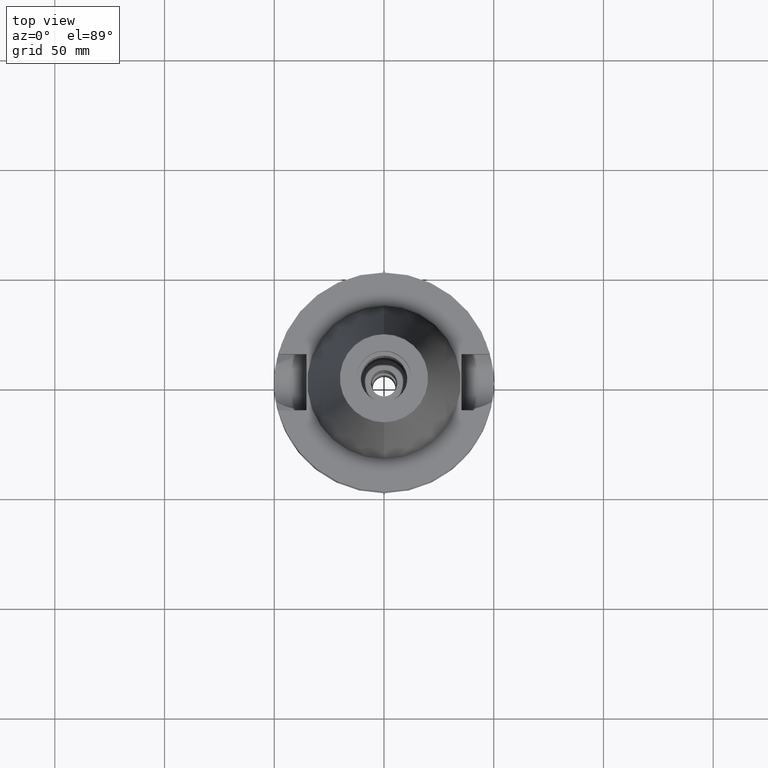
[diagram: clean part render]
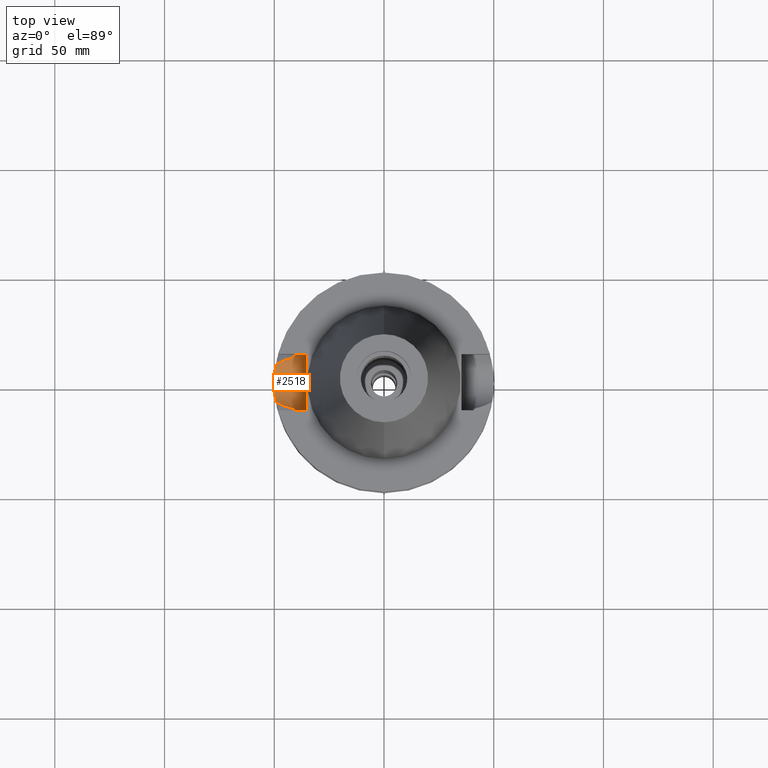
[diagram: same view with one face highlighted and labeled with its STEP entity id]
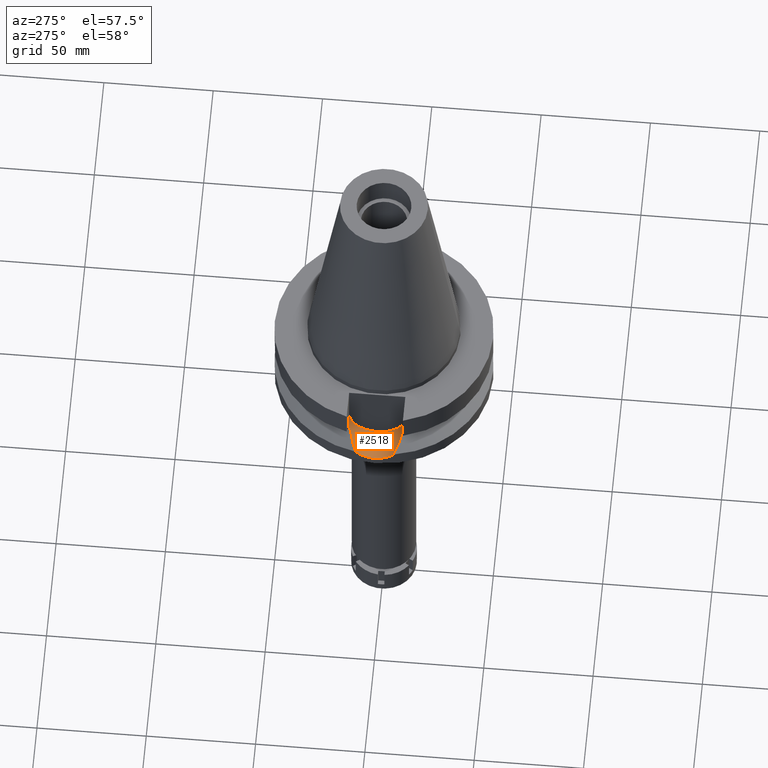
[diagram: same view with one face highlighted and labeled with its STEP entity id]
A machine part, top view. The second image highlights one B-rep face of the part: STEP entity #2518.
A second angle (auxiliary view) of the same face is appended — the face is thin or edge-on in the first view.
In plain terms, the highlighted cylindrical surface (edge-blend (fillet) strip) has radius 12.85 mm, axis along (-1, 0, 0).
Its self-contained STEP definition (entity closure, byte-faithful):
#17 = CARTESIAN_POINT ( 'NONE',  ( -49.55322993647762075, 6.669162169083739933, -32.13384980541444946 ) ) ;
#35 = CARTESIAN_POINT ( 'NONE',  ( -49.45261097655104265, 7.378715931507612069, -31.67219524147119003 ) ) ;
#43 = ORIENTED_EDGE ( 'NONE', *, *, #1584, .T. ) ;
#50 = EDGE_CURVE ( 'NONE', #2336, #3654, #3596, .T. ) ;
#58 = CARTESIAN_POINT ( 'NONE',  ( -49.90699458497640251, -3.063359792302843054, -33.63580153747023616 ) ) ;
#61 = AXIS2_PLACEMENT_3D ( 'NONE', #1115, #325, #2276 ) ;
#78 = CARTESIAN_POINT ( 'NONE',  ( -49.64898610861321515, 5.924049221671191745, -32.55967030302682730 ) ) ;
#96 = CARTESIAN_POINT ( 'NONE',  ( -49.79024291479110786, -4.574903425240434807, -33.15803416394744829 ) ) ;
#140 = CARTESIAN_POINT ( 'NONE',  ( -49.97921345346468769, 1.472277930474388263, -33.92105547439442859 ) ) ;
#198 = CARTESIAN_POINT ( 'NONE',  ( -40.62483067706570239, -12.48524489602293386, -24.19332376311659516 ) ) ;
#275 = CARTESIAN_POINT ( 'NONE',  ( -45.36052064371929760, -10.37288774121679147, -28.73457264654832244 ) ) ;
#293 = CARTESIAN_POINT ( 'NONE',  ( -47.11308930613740387, -9.652570117633413105, -29.63537567441583320 ) ) ;
#295 = CARTESIAN_POINT ( 'NONE',  ( -40.51083188481999997, 12.85000000000001563, -21.59155125951116361 ) ) ;
#312 = CARTESIAN_POINT ( 'NONE',  ( -49.54911688005113746, 6.699663359113102068, -32.11529720875320493 ) ) ;
#325 = DIRECTION ( 'NONE',  ( 1.000000000000000000, 0.0000000000000000000, 0.0000000000000000000 ) ) ;
#330 = CARTESIAN_POINT ( 'NONE',  ( -49.55655204303092631, 6.644431293618784373, -32.14882155012384146 ) ) ;
#336 = B_SPLINE_CURVE_WITH_KNOTS ( 'NONE', 3,
 ( #1944, #887, #2563, #293, #1422, #1992, #3465, #2290, #2526, #2010, #1110, #2234, #275, #2542, #3134, #577 ),
 .UNSPECIFIED., .F., .F.,
 ( 4, 2, 2, 1, 1, 1, 1, 2, 2, 4 ),
 ( 0.0000000000000000000, 0.2499999999999604761, 0.3749999999999414912, 0.4374999999999319433, 0.4687499999999277800, 0.4843749999999265032, 0.4921874999999250599, 0.4960937499999251155, 0.4999999999999251710, 1.000000000000000000 ),
 .UNSPECIFIED. ) ;
#346 = CARTESIAN_POINT ( 'NONE',  ( -49.79203021163339571, 4.555405786645052579, -33.16544452543318044 ) ) ;
#367 = CARTESIAN_POINT ( 'NONE',  ( -49.55655823009324479, -6.644396915812552429, -32.14884227869342936 ) ) ;
#385 = CARTESIAN_POINT ( 'NONE',  ( -49.78020860947431458, 4.683043310823982175, -33.11642240089390299 ) ) ;
#403 = CARTESIAN_POINT ( 'NONE',  ( -49.60527657784179212, 6.280734340147760442, -32.36827992093747497 ) ) ;
#406 = CARTESIAN_POINT ( 'NONE',  ( -40.56599794184011643, 12.67508828620082006, -23.26599945039666650 ) ) ;
#420 = CARTESIAN_POINT ( 'NONE',  ( -49.99187456503992877, 0.9032426754596117879, -33.96962919619299726 ) ) ;
#424 = VECTOR ( 'NONE', #724, 1000.000000000000000 ) ;
#464 = EDGE_CURVE ( 'NONE', #1375, #646, #2702, .T. ) ;
#491 = ORIENTED_EDGE ( 'NONE', *, *, #464, .F. ) ;
#515 = ORIENTED_EDGE ( 'NONE', *, *, #50, .T. ) ;
#538 = CARTESIAN_POINT ( 'NONE',  ( -44.90443336423841458, 10.54134858370451688, -28.50007105332818824 ) ) ;
#553 = CARTESIAN_POINT ( 'NONE',  ( -49.26250064874000145, 8.556052234130000045, -30.73730776426999967 ) ) ;
#572 = CARTESIAN_POINT ( 'NONE',  ( -49.50798015996187473, 6.996952393376452584, -31.92837050167637258 ) ) ;
#577 = CARTESIAN_POINT ( 'NONE',  ( -40.85052569294000335, -11.72538061688000077, -26.40718074535000426 ) ) ;
#581 = ORIENTED_EDGE ( 'NONE', *, *, #3112, .T. ) ;
#613 = CARTESIAN_POINT ( 'NONE',  ( -49.64367505643607359, -5.960659306534282109, -32.53565566984392632 ) ) ;
#627 = CARTESIAN_POINT ( 'NONE',  ( -49.92886531851459608, -2.680927593972267431, -33.72320138163972558 ) ) ;
#646 = VERTEX_POINT ( 'NONE', #2593 ) ;
#724 = DIRECTION ( 'NONE',  ( -1.000000000000000000, 3.440913946376999995E-14, 0.0000000000000000000 ) ) ;
#792 = CARTESIAN_POINT ( 'NONE',  ( -44.63759404274561149, 10.63537711924981366, -28.36275234330751260 ) ) ;
#805 = CARTESIAN_POINT ( 'NONE',  ( -40.51818735908934599, 12.82722126770432780, -22.03688626287227237 ) ) ;
#842 = CARTESIAN_POINT ( 'NONE',  ( -40.85052569294000335, 11.72538061688000077, -26.40718074535000426 ) ) ;
#864 = EDGE_CURVE ( 'NONE', #1375, #3602, #2199, .T. ) ;
#883 = CARTESIAN_POINT ( 'NONE',  ( -49.37891072592136510, 7.861784144081257253, -31.32216870003470888 ) ) ;
#887 = CARTESIAN_POINT ( 'NONE',  ( -48.69893586166732291, -8.879462875538125743, -30.44868467956310809 ) ) ;
#923 = CARTESIAN_POINT ( 'NONE',  ( -49.96641267300545053, 1.854385218556314774, -33.87144511929346891 ) ) ;
#963 = CARTESIAN_POINT ( 'NONE',  ( -49.72680802957990664, 5.221633250201215048, -32.89276324287531139 ) ) ;
#983 = CARTESIAN_POINT ( 'NONE',  ( -49.79144986254383554, -4.561756691911937445, -33.16303606679890947 ) ) ;
#996 = CARTESIAN_POINT ( 'NONE',  ( -49.99991299091582420, -0.01387171431925853134, -34.00001339701647396 ) ) ;
#1061 = CARTESIAN_POINT ( 'NONE',  ( -35.39999999999999858, -12.84999999999999964, -21.14999999999999858 ) ) ;
#1066 = CARTESIAN_POINT ( 'NONE',  ( -40.66327750826189202, -12.35976744504285563, -24.67240287686004052 ) ) ;
#1091 = CYLINDRICAL_SURFACE ( 'NONE', #2802, 12.85000000000000320 ) ;
#1110 = CARTESIAN_POINT ( 'NONE',  ( -45.39653537754085022, -10.35931674966439431, -28.75309875881794497 ) ) ;
#1115 = CARTESIAN_POINT ( 'NONE',  ( -35.39999999999999858, 1.497743035356999952E-14, -21.14999999999999858 ) ) ;
#1118 = CARTESIAN_POINT ( 'NONE',  ( -45.20733136284145814, 10.43021362323480439, -28.65588561609699170 ) ) ;
#1148 = CARTESIAN_POINT ( 'NONE',  ( -49.32372953338764177, 8.203519560508336639, -31.05192037960602036 ) ) ;
#1203 = CARTESIAN_POINT ( 'NONE',  ( -49.59437430872976194, -6.356898429340602341, -32.31828320044778735 ) ) ;
#1209 = CARTESIAN_POINT ( 'NONE',  ( -40.58662774857992872, 12.60877356363334734, -23.62931612666425352 ) ) ;
#1220 = CARTESIAN_POINT ( 'NONE',  ( -49.76598423026426588, 4.832695556742285348, -33.05724367497484195 ) ) ;
#1224 = CARTESIAN_POINT ( 'NONE',  ( -40.57496242610589832, 12.64633064308077515, -23.43373649619472943 ) ) ;
#1236 = CARTESIAN_POINT ( 'NONE',  ( -49.99988097686024702, 0.05777274209468621913, -33.99989126171271892 ) ) ;
#1260 = CARTESIAN_POINT ( 'NONE',  ( -49.84644755718559850, -3.921701316539350834, -33.38981237010514747 ) ) ;
#1283 = EDGE_CURVE ( 'NONE', #2910, #646, #1888, .T. ) ;
#1332 = CARTESIAN_POINT ( 'NONE',  ( -48.17474668584038966, 9.180277194433005050, -30.18022735154966085 ) ) ;
#1364 = CARTESIAN_POINT ( 'NONE',  ( -40.51083188481999997, 12.84999999999999964, -21.14999999999999858 ) ) ;
#1375 = VERTEX_POINT ( 'NONE', #1061 ) ;
#1380 = CARTESIAN_POINT ( 'NONE',  ( -40.61157027093094030, -12.52820949425325381, -24.00859467744153619 ) ) ;
#1422 = CARTESIAN_POINT ( 'NONE',  ( -46.77601485389851632, -9.802140978817826422, -29.46227579492181547 ) ) ;
#1446 = CARTESIAN_POINT ( 'NONE',  ( -40.85052569294000335, -11.72538061688000077, -26.40718074535000426 ) ) ;
#1476 = CARTESIAN_POINT ( 'NONE',  ( -49.78714585120428637, 4.608515935045849332, -33.14520686586694609 ) ) ;
#1514 = CARTESIAN_POINT ( 'NONE',  ( -49.55415699599156909, -6.662282079166120141, -32.13801721398516520 ) ) ;
#1554 = CARTESIAN_POINT ( 'NONE',  ( -49.80427849008749064, -4.419869523420513424, -33.21613890181886575 ) ) ;
#1584 = EDGE_CURVE ( 'NONE', #2449, #2910, #336, .T. ) ;
#1628 = CARTESIAN_POINT ( 'NONE',  ( -40.60257244295471679, -12.55730800210383435, -23.87713024257040928 ) ) ;
#1642 = CARTESIAN_POINT ( 'NONE',  ( -40.51083188481998576, -12.84999999999998721, -22.03309742070389632 ) ) ;
#1655 = CARTESIAN_POINT ( 'NONE',  ( -40.60092910951218670, -12.56261850439675598, -23.85257851100395143 ) ) ;
#1664 = CARTESIAN_POINT ( 'NONE',  ( -49.54076674226231347, 6.761186823603464013, -32.07757331912777943 ) ) ;
#1697 = DIRECTION ( 'NONE',  ( 0.0000000000000000000, 0.0000000000000000000, -1.000000000000000000 ) ) ;
#1702 = CARTESIAN_POINT ( 'NONE',  ( -40.51083188481999997, 12.84999999999999964, -21.14999999999999858 ) ) ;
#1719 = CARTESIAN_POINT ( 'NONE',  ( -49.52357036694088777, 6.886290593692245388, -31.99961560243307090 ) ) ;
#1759 = CARTESIAN_POINT ( 'NONE',  ( -49.56395370291382108, -6.589055712784618102, -32.18213532661877707 ) ) ;
#1775 = CARTESIAN_POINT ( 'NONE',  ( -49.86770969762344663, -3.635792842305935135, -33.47650553564897535 ) ) ;
#1812 = CARTESIAN_POINT ( 'NONE',  ( -49.79008146597247020, 4.576641034353368553, -33.15737214662036791 ) ) ;
#1868 = CARTESIAN_POINT ( 'NONE',  ( -40.54025138676031048, -12.75862549541937518, -22.93152005430698992 ) ) ;
#1884 = VERTEX_POINT ( 'NONE', #1364 ) ;
#1888 = B_SPLINE_CURVE_WITH_KNOTS ( 'NONE', 3,
 ( #3018, #3003, #3324, #3075, #1066, #3060, #198, #1380, #3376, #1628, #1655, #1868, #1642, #3591 ),
 .UNSPECIFIED., .F., .F.,
 ( 4, 2, 2, 1, 1, 2, 2, 4 ),
 ( 0.0000000000000000000, 0.2500000000000011102, 0.3750000000000027200, 0.4375000000000034972, 0.4687500000000046629, 0.4843750000000053291, 0.5000000000000059952, 1.000000000000000000 ),
 .UNSPECIFIED. ) ;
#1902 = CARTESIAN_POINT ( 'NONE',  ( -43.71927977557998446, 10.94309169762810363, -27.88982644123730736 ) ) ;
#1936 = CARTESIAN_POINT ( 'NONE',  ( -41.72878530957138565, 11.52142375742830716, -26.86207699532542748 ) ) ;
#1944 = CARTESIAN_POINT ( 'NONE',  ( -49.26250064874000145, -8.556052234130000045, -30.73730776426999967 ) ) ;
#1976 = CARTESIAN_POINT ( 'NONE',  ( -40.54025378189739115, 12.75731467219109128, -22.70686882176295995 ) ) ;
#1992 = CARTESIAN_POINT ( 'NONE',  ( -46.25381555792941413, -10.02153060276169683, -29.19392774350792408 ) ) ;
#2010 = CARTESIAN_POINT ( 'NONE',  ( -45.43114909266830637, -10.34624102820597180, -28.77090388127414045 ) ) ;
#2045 = CARTESIAN_POINT ( 'NONE',  ( -49.99978007005628200, 0.1277363650161033315, -33.99951339606897704 ) ) ;
#2066 = CARTESIAN_POINT ( 'NONE',  ( -49.75837799883527168, -4.920711294735656161, -33.02594009529595098 ) ) ;
#2087 = CARTESIAN_POINT ( 'NONE',  ( -49.48027691330651123, -7.211450081585525140, -31.80475317643659139 ) ) ;
#2092 = CARTESIAN_POINT ( 'NONE',  ( -40.73816962965489807, 12.11682243016098148, -25.53412644640227569 ) ) ;
#2105 = CARTESIAN_POINT ( 'NONE',  ( -49.57420851425387553, -6.511617494218044477, -32.22817500960054815 ) ) ;
#2126 = CARTESIAN_POINT ( 'NONE',  ( -40.59188576338967636, 12.59181613885782447, -23.71309950380773302 ) ) ;
#2152 = ORIENTED_EDGE ( 'NONE', *, *, #3433, .F. ) ;
#2199 = CIRCLE ( 'NONE', #61, 12.84999999999999964 ) ;
#2218 = ORIENTED_EDGE ( 'NONE', *, *, #1283, .T. ) ;
#2230 = LINE ( 'NONE', #1702, #3163 ) ;
#2234 = CARTESIAN_POINT ( 'NONE',  ( -45.37343796899543946, -10.36802644140766638, -28.74121742321267448 ) ) ;
#2272 = CARTESIAN_POINT ( 'NONE',  ( -40.51083188481999997, 12.84999999999999964, -21.14999999999999858 ) ) ;
#2276 = DIRECTION ( 'NONE',  ( 0.0000000000000000000, -1.000000000000000000, 0.0000000000000000000 ) ) ;
#2285 = CARTESIAN_POINT ( 'NONE',  ( -49.55497938656009893, 6.656146422019831199, -32.14173509724518851 ) ) ;
#2290 = CARTESIAN_POINT ( 'NONE',  ( -45.67185761171900538, -10.25416805051189861, -28.89471206456655139 ) ) ;
#2299 = B_SPLINE_CURVE_WITH_KNOTS ( 'NONE', 3,
 ( #2272, #295, #805, #1976, #3425, #406, #1224, #1209, #2126, #2334, #2372, #3238, #2092, #3484 ),
 .UNSPECIFIED., .F., .F.,
 ( 4, 2, 2, 1, 1, 2, 2, 4 ),
 ( 0.0000000000000000000, 0.2499999999999983902, 0.3749999999999975020, 0.4374999999999970024, 0.4687499999999977240, 0.4843749999999972244, 0.4999999999999967248, 1.000000000000000000 ),
 .UNSPECIFIED. ) ;
#2328 = CARTESIAN_POINT ( 'NONE',  ( -49.55878331871823406, -6.627792136230304720, -32.15886750753714551 ) ) ;
#2334 = CARTESIAN_POINT ( 'NONE',  ( -40.59544857123887596, 12.58031941217257099, -23.76894563306183272 ) ) ;
#2336 = VERTEX_POINT ( 'NONE', #3314 ) ;
#2345 = ORIENTED_EDGE ( 'NONE', *, *, #864, .T. ) ;
#2347 = CARTESIAN_POINT ( 'NONE',  ( -49.98151994503801632, -1.536776126122858299, -33.93130987527241160 ) ) ;
#2369 = CARTESIAN_POINT ( 'NONE',  ( -49.99657010604911278, 0.6197521070863730719, -33.98745896370525799 ) ) ;
#2372 = CARTESIAN_POINT ( 'NONE',  ( -40.59737061726136176, 12.57411364518166330, -23.79856269428449522 ) ) ;
#2390 = CARTESIAN_POINT ( 'NONE',  ( -49.61106985564465077, -6.224615899392656360, -32.39218330686853875 ) ) ;
#2399 = ORIENTED_EDGE ( 'NONE', *, *, #3508, .T. ) ;
#2407 = CARTESIAN_POINT ( 'NONE',  ( -49.79683695212683148, -4.502663508576141282, -33.18534950409421214 ) ) ;
#2449 = VERTEX_POINT ( 'NONE', #3095 ) ;
#2467 = CARTESIAN_POINT ( 'NONE',  ( -45.42023110305455447, 10.35029144300025905, -28.76538898871471872 ) ) ;
#2518 = ADVANCED_FACE ( 'NONE', ( #3111 ), #1091, .F. ) ;
#2526 = CARTESIAN_POINT ( 'NONE',  ( -45.51168764413124990, -10.31565306357823530, -28.81233096579985542 ) ) ;
#2542 = CARTESIAN_POINT ( 'NONE',  ( -44.04311059988852861, -10.86788550140817122, -28.05687911512987398 ) ) ;
#2563 = CARTESIAN_POINT ( 'NONE',  ( -48.09113742763256028, -9.195432393471273613, -30.13728902084996619 ) ) ;
#2593 = CARTESIAN_POINT ( 'NONE',  ( -40.51083188481999997, -12.84999999999999964, -21.14999999999999858 ) ) ;
#2616 = CARTESIAN_POINT ( 'NONE',  ( -49.99991418525501530, 0.01116271474884835205, -34.00001628486786842 ) ) ;
#2672 = CARTESIAN_POINT ( 'NONE',  ( -49.79288518047050616, 4.546060314992247164, -33.16898483581952917 ) ) ;
#2695 = CARTESIAN_POINT ( 'NONE',  ( -49.99918696136425922, 0.2913176028279214624, -33.99729381970885811 ) ) ;
#2702 = LINE ( 'NONE', #2995, #424 ) ;
#2779 = CARTESIAN_POINT ( 'NONE',  ( -45.35667672635830883, 10.37431558169554258, -28.73270125890250526 ) ) ;
#2792 = CARTESIAN_POINT ( 'NONE',  ( -46.92211969159994567, 9.777072888690339525, -29.53782854790552648 ) ) ;
#2802 = AXIS2_PLACEMENT_3D ( 'NONE', #3693, #3077, #1697 ) ;
#2848 = DIRECTION ( 'NONE',  ( 1.000000000000000000, 3.301887120261000215E-14, -2.502482870091999982E-14 ) ) ;
#2868 = CARTESIAN_POINT ( 'NONE',  ( -49.55614273364046340, 6.647481784019329432, -32.14697738337724076 ) ) ;
#2903 = CARTESIAN_POINT ( 'NONE',  ( -49.81880725734226445, -4.254068733300419680, -33.27613423611570909 ) ) ;
#2910 = VERTEX_POINT ( 'NONE', #1446 ) ;
#2924 = EDGE_LOOP ( 'NONE', ( #2218, #491, #2345, #2152, #581, #515, #2399, #43 ) ) ;
#2926 = CARTESIAN_POINT ( 'NONE',  ( -49.72328725685551376, -5.263682548419172491, -32.87883983716755409 ) ) ;
#2963 = CARTESIAN_POINT ( 'NONE',  ( -49.70815231105290621, 5.396331757805581830, -32.81362775729908776 ) ) ;
#2982 = CARTESIAN_POINT ( 'NONE',  ( -49.26250064874000145, 8.556052234130000045, -30.73730776426999967 ) ) ;
#2995 = CARTESIAN_POINT ( 'NONE',  ( -35.39999999999999858, -12.84999999999999964, -21.14999999999999858 ) ) ;
#3003 = CARTESIAN_POINT ( 'NONE',  ( -40.79434733663292434, -11.92110265461348639, -25.97065107313768451 ) ) ;
#3018 = CARTESIAN_POINT ( 'NONE',  ( -40.85052569294000335, -11.72538061688000077, -26.40718074535000426 ) ) ;
#3033 = B_SPLINE_CURVE_WITH_KNOTS ( 'NONE', 3,
 ( #3438, #1148, #883, #35, #3131, #572, #1719, #1664, #312, #17, #2285, #2868, #330, #403, #78, #2963, #963, #3187, #1220, #385, #1476, #1812, #346, #2672, #3233, #3539, #923, #140, #420, #2369, #2695, #2045, #1236, #2616, #996, #3555, #2347, #627, #58, #1775, #1260, #2903, #1554, #2407, #3170, #983, #96, #2066, #2926, #3516, #613, #2390, #1203, #2105, #1759, #2328, #367, #3480, #1514, #2087, #3251, #3495 ),
 .UNSPECIFIED., .F., .F.,
 ( 4, 2, 2, 1, 1, 1, 1, 2, 2, 2, 2, 1, 1, 1, 2, 2, 2, 2, 1, 1, 1, 2, 2, 2, 2, 1, 1, 1, 1, 2, 2, 2, 2, 1, 1, 1, 1, 2, 2, 4 ),
 ( 0.0000000000000000000, 0.06250000000004823919, 0.09375000000007262246, 0.1093750000000851957, 0.1171875000000912326, 0.1210937500000939804, 0.1230468750000955486, 0.1240234375000959233, 0.1250000000000962841, 0.1875000000001008083, 0.2187500000001033063, 0.2343750000001045830, 0.2421875000001052769, 0.2460937500001055545, 0.2480468750001055545, 0.2500000000001055267, 0.3750000000001103562, 0.4375000000001127431, 0.4687500000001139089, 0.4843750000001145750, 0.4921875000001148526, 0.4960937500001150191, 0.5000000000001151301, 0.6250000000001197931, 0.6875000000001220135, 0.7187500000001234568, 0.7343750000001241229, 0.7421875000001247891, 0.7460937500001249001, 0.7480468750001249001, 0.7500000000001250111, 0.8125000000001256772, 0.8437500000001263434, 0.8593750000001267875, 0.8671875000001267875, 0.8710937500001267875, 0.8730468750001264544, 0.8740234375001261213, 0.8750000000001257883, 1.000000000000000000 ),
 .UNSPECIFIED. ) ;
#3060 = CARTESIAN_POINT ( 'NONE',  ( -40.63720027269599200, -12.44499102501024979, -24.35263434035596575 ) ) ;
#3075 = CARTESIAN_POINT ( 'NONE',  ( -40.68244639104631943, -12.29666286615821669, -24.88711474763221077 ) ) ;
#3076 = CARTESIAN_POINT ( 'NONE',  ( -42.55575628231031260, 11.29794003107591394, -27.28963488303712026 ) ) ;
#3077 = DIRECTION ( 'NONE',  ( -1.000000000000000000, 0.0000000000000000000, 0.0000000000000000000 ) ) ;
#3092 = CARTESIAN_POINT ( 'NONE',  ( -44.09429877903009753, 10.82152864078254950, -28.08305049851244917 ) ) ;
#3095 = CARTESIAN_POINT ( 'NONE',  ( -49.26250064874000145, -8.556052234130000045, -30.73730776426999967 ) ) ;
#3111 = FACE_OUTER_BOUND ( 'NONE', #2924, .T. ) ;
#3112 = EDGE_CURVE ( 'NONE', #1884, #2336, #2299, .T. ) ;
#3131 = CARTESIAN_POINT ( 'NONE',  ( -49.47566580373246126, 7.222569678818593353, -31.77964915229775045 ) ) ;
#3134 = CARTESIAN_POINT ( 'NONE',  ( -42.54318310994875674, -11.33229742785278304, -27.28389589529529147 ) ) ;
#3163 = VECTOR ( 'NONE', #2848, 1000.000000000000000 ) ;
#3170 = CARTESIAN_POINT ( 'NONE',  ( -49.79360975992940297, -4.538122689795891063, -33.17198411705715699 ) ) ;
#3187 = CARTESIAN_POINT ( 'NONE',  ( -49.75319208394104464, 4.961948303680918215, -33.00370953018740749 ) ) ;
#3233 = CARTESIAN_POINT ( 'NONE',  ( -49.86316841602715755, 3.774661687213592742, -33.45988861081340815 ) ) ;
#3238 = CARTESIAN_POINT ( 'NONE',  ( -40.65436025735896663, 12.39001373506708603, -24.66363152929152136 ) ) ;
#3251 = CARTESIAN_POINT ( 'NONE',  ( -49.38324903549574429, -7.860828862630161673, -31.35774966800363472 ) ) ;
#3314 = CARTESIAN_POINT ( 'NONE',  ( -40.85052569294000335, 11.72538061688000077, -26.40718074535000426 ) ) ;
#3324 = CARTESIAN_POINT ( 'NONE',  ( -40.74530521662109805, -12.08734525801182258, -25.53455946901382845 ) ) ;
#3376 = CARTESIAN_POINT ( 'NONE',  ( -40.60613812303755310, -12.54578004800272595, -23.92968102608549685 ) ) ;
#3398 = CARTESIAN_POINT ( 'NONE',  ( -45.48247122811904575, 10.32666305407331997, -28.79740030455648991 ) ) ;
#3425 = CARTESIAN_POINT ( 'NONE',  ( -40.54944812473407012, 12.72805978472505828, -22.93052269424461187 ) ) ;
#3433 = EDGE_CURVE ( 'NONE', #1884, #3602, #2230, .T. ) ;
#3438 = CARTESIAN_POINT ( 'NONE',  ( -49.26250064874000145, 8.556052234130000045, -30.73730776426999967 ) ) ;
#3465 = CARTESIAN_POINT ( 'NONE',  ( -45.98856900554216054, -10.12998328333054943, -29.05758002123912931 ) ) ;
#3480 = CARTESIAN_POINT ( 'NONE',  ( -49.55507279108010010, -6.655467508237128627, -32.14214692829536091 ) ) ;
#3484 = CARTESIAN_POINT ( 'NONE',  ( -40.85052569294000335, 11.72538061688000077, -26.40718074535000426 ) ) ;
#3495 = CARTESIAN_POINT ( 'NONE',  ( -49.26250064874000145, -8.556052234130000045, -30.73730776426999967 ) ) ;
#3508 = EDGE_CURVE ( 'NONE', #3654, #2449, #3033, .T. ) ;
#3516 = CARTESIAN_POINT ( 'NONE',  ( -49.66436399957925829, -5.785502175980283823, -32.62553262580183855 ) ) ;
#3539 = CARTESIAN_POINT ( 'NONE',  ( -49.91493021340031788, 3.003896465712370567, -33.66817669915489830 ) ) ;
#3555 = CARTESIAN_POINT ( 'NONE',  ( -49.99934626393190484, -0.7783924091633120934, -33.99780972340983709 ) ) ;
#3575 = CARTESIAN_POINT ( 'NONE',  ( -35.39999999999999858, 12.84999999999999964, -21.14999999999999858 ) ) ;
#3591 = CARTESIAN_POINT ( 'NONE',  ( -40.51083188481999997, -12.84999999999999964, -21.14999999999999858 ) ) ;
#3596 = B_SPLINE_CURVE_WITH_KNOTS ( 'NONE', 3,
 ( #842, #1936, #3076, #1902, #3092, #792, #538, #1118, #2779, #2467, #3608, #3398, #2792, #1332, #553 ),
 .UNSPECIFIED., .F., .F.,
 ( 4, 2, 2, 1, 1, 1, 2, 2, 4 ),
 ( 0.0000000000000000000, 0.2499999999999907296, 0.3749999999999851230, 0.4374999999999820699, 0.4687499999999796274, 0.4843749999999781841, 0.4921874999999772404, 0.4999999999999762967, 1.000000000000000000 ),
 .UNSPECIFIED. ) ;
#3602 = VERTEX_POINT ( 'NONE', #3575 ) ;
#3608 = CARTESIAN_POINT ( 'NONE',  ( -45.46250051438610029, 10.33426060698599258, -28.78712904901961167 ) ) ;
#3654 = VERTEX_POINT ( 'NONE', #2982 ) ;
#3693 = CARTESIAN_POINT ( 'NONE',  ( -35.39999999999999858, 1.497743035356999952E-14, -21.14999999999999858 ) ) ;